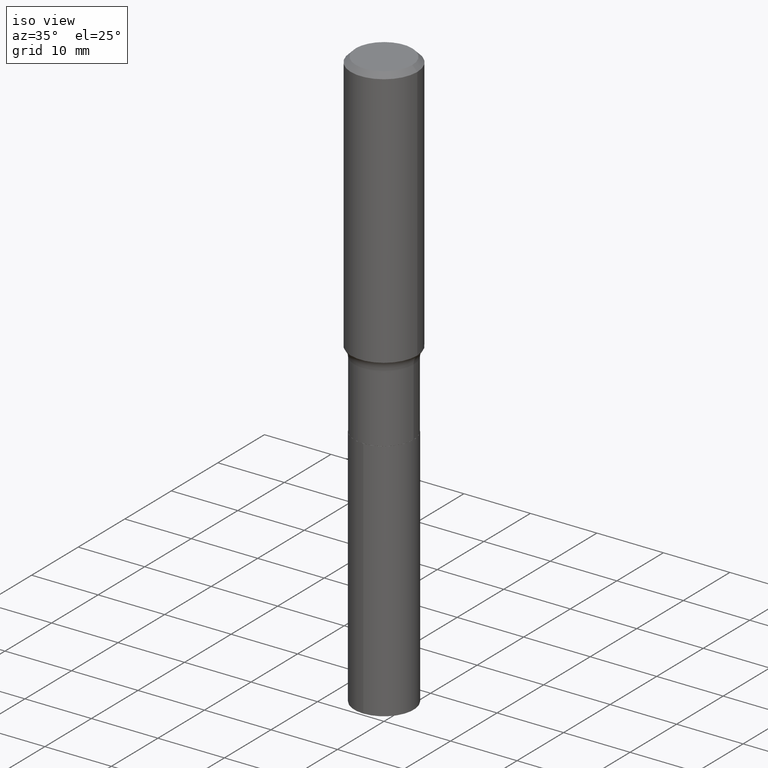
[diagram: clean part render]
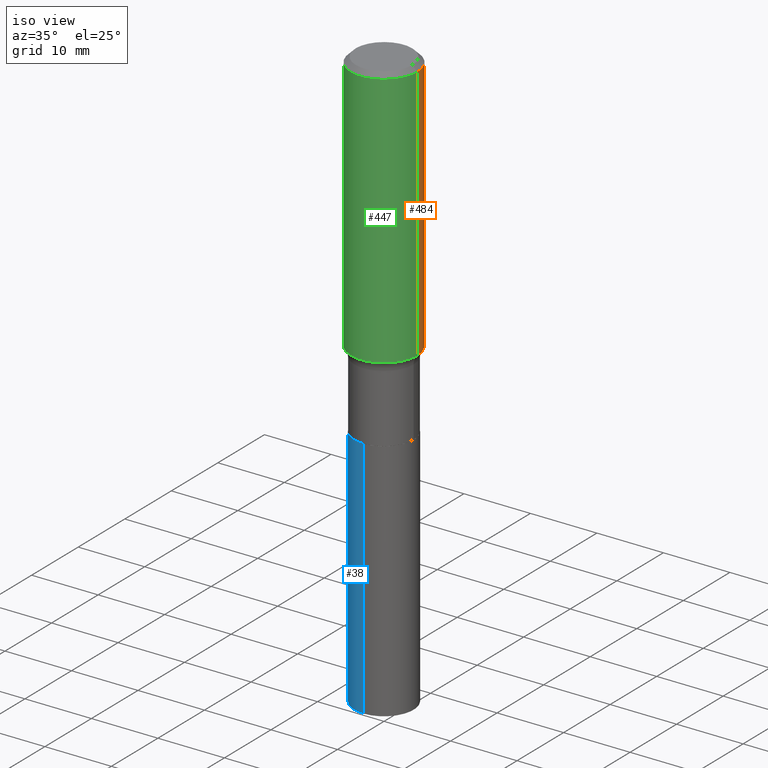
[diagram: same view with three faces highlighted in distinct colors, each labeled with its STEP entity id]
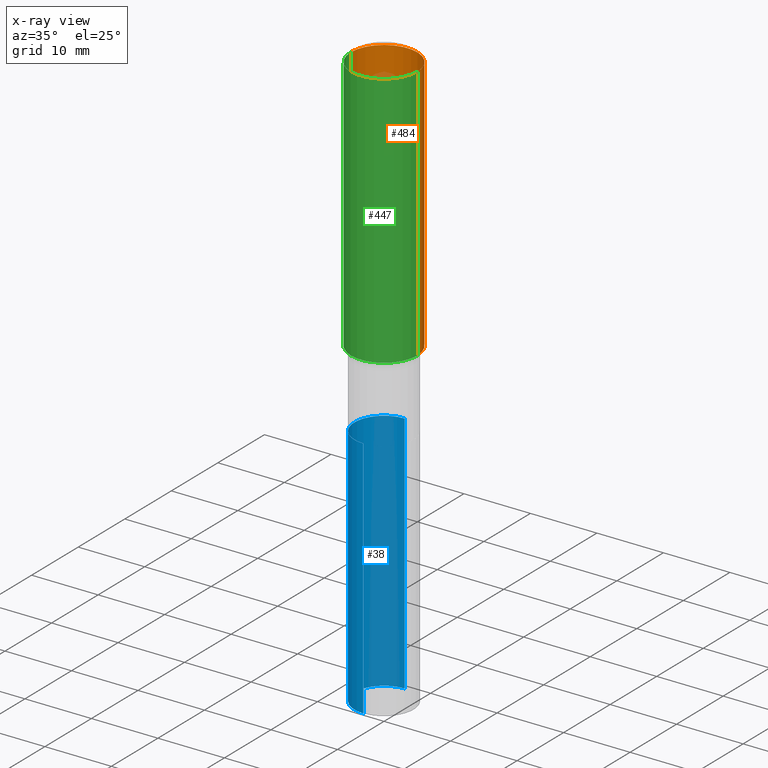
[diagram: x-ray of the same camera — body ghosted, the three highlighted faces saturated]
A machine part, iso view with three faces highlighted in distinct colors.
The next image is the same camera in x-ray (body ghosted, the three faces saturated) — at least one of them is partly hidden behind the body in this view.
Their STEP definitions:

[orange] entity #484 — the highlighted cylindrical surface (partial cylindrical patch) has radius 5 mm, axis along (-0, 0, 1).
#5 = ORIENTED_EDGE ( 'NONE', *, *, #328, .F. ) ;
#19 = EDGE_CURVE ( 'NONE', #114, #464, #381, .T. ) ;
#57 = CIRCLE ( 'NONE', #86, 0.1968500000000000527 ) ;
#86 = AXIS2_PLACEMENT_3D ( 'NONE', #445, #360, #480 ) ;
#93 = CARTESIAN_POINT ( 'NONE',  ( 0.1968500000000000527, -1.477690918335233688E-15, -0.02952750000000022024 ) ) ;
#106 = CYLINDRICAL_SURFACE ( 'NONE', #457, 0.1968500000000001082 ) ;
#108 = CARTESIAN_POINT ( 'NONE',  ( 0.000000000000000000, 0.000000000000000000, 0.000000000000000000 ) ) ;
#112 = VECTOR ( 'NONE', #450, 39.37007874015748143 ) ;
#114 = VERTEX_POINT ( 'NONE', #400 ) ;
#142 = CARTESIAN_POINT ( 'NONE',  ( -0.1968500000000000527, -1.353448661034646867E-15, -0.02952750000000022024 ) ) ;
#152 = DIRECTION ( 'NONE',  ( -2.445468806185136597E-29, 3.491481338843145583E-15, 1.000000000000000000 ) ) ;
#155 = EDGE_CURVE ( 'NONE', #464, #470, #162, .T. ) ;
#162 = LINE ( 'NONE', #280, #344 ) ;
#223 = AXIS2_PLACEMENT_3D ( 'NONE', #313, #152, #390 ) ;
#244 = DIRECTION ( 'NONE',  ( -2.445468806185136877E-29, 3.491481338843145188E-15, 1.000000000000000000 ) ) ;
#280 = CARTESIAN_POINT ( 'NONE',  ( -0.1968500000000001082, 1.398703375343757985E-15, -9.682923725166787881E-30 ) ) ;
#302 = DIRECTION ( 'NONE',  ( -2.445468806185136597E-29, 3.491481338843145583E-15, 1.000000000000000000 ) ) ;
#313 = CARTESIAN_POINT ( 'NONE',  ( 3.783061605558214403E-29, -5.401209357524118413E-15, -1.546967843543948229 ) ) ;
#328 = EDGE_CURVE ( 'NONE', #353, #470, #57, .T. ) ;
#344 = VECTOR ( 'NONE', #244, 39.37007874015748143 ) ;
#353 = VERTEX_POINT ( 'NONE', #93 ) ;
#355 = ORIENTED_EDGE ( 'NONE', *, *, #19, .T. ) ;
#360 = DIRECTION ( 'NONE',  ( -2.445468806185136597E-29, 3.491481338843145583E-15, 1.000000000000000000 ) ) ;
#381 = CIRCLE ( 'NONE', #223, 0.1968500000000001915 ) ;
#389 = ORIENTED_EDGE ( 'NONE', *, *, #155, .T. ) ;
#390 = DIRECTION ( 'NONE',  ( 1.000000000000000000, -6.982962677686266711E-15, 0.000000000000000000 ) ) ;
#398 = EDGE_LOOP ( 'NONE', ( #355, #389, #5, #399 ) ) ;
#399 = ORIENTED_EDGE ( 'NONE', *, *, #413, .F. ) ;
#400 = CARTESIAN_POINT ( 'NONE',  ( 0.1968500000000001915, -6.775805560626661599E-15, -1.546967843543948229 ) ) ;
#413 = EDGE_CURVE ( 'NONE', #114, #353, #417, .T. ) ;
#417 = LINE ( 'NONE', #419, #112 ) ;
#419 = CARTESIAN_POINT ( 'NONE',  ( 0.1968500000000001082, -1.374596203102542397E-15, 9.598753983154305062E-30 ) ) ;
#420 = CARTESIAN_POINT ( 'NONE',  ( -0.1968500000000001915, -4.002505982180359837E-15, -1.546967843543948229 ) ) ;
#445 = CARTESIAN_POINT ( 'NONE',  ( 7.220858017463216492E-31, -1.030947152326917595E-16, -0.02952750000000022024 ) ) ;
#450 = DIRECTION ( 'NONE',  ( -2.445468806185136877E-29, 3.491481338843145188E-15, 1.000000000000000000 ) ) ;
#452 = FACE_OUTER_BOUND ( 'NONE', #398, .T. ) ;
#455 = DIRECTION ( 'NONE',  ( 1.000000000000000000, -6.982962677686266711E-15, 4.876176775795935793E-29 ) ) ;
#457 = AXIS2_PLACEMENT_3D ( 'NONE', #108, #302, #455 ) ;
#464 = VERTEX_POINT ( 'NONE', #420 ) ;
#470 = VERTEX_POINT ( 'NONE', #142 ) ;
#480 = DIRECTION ( 'NONE',  ( 1.000000000000000000, -6.982962677686266711E-15, 0.000000000000000000 ) ) ;
#484 = ADVANCED_FACE ( 'NONE', ( #452 ), #106, .T. ) ;

[blue] entity #38 — the highlighted cylindrical surface (edge-blend (fillet) strip) has radius 4.4501 mm, axis along (-0, 0, 1).
#1 = LINE ( 'NONE', #259, #117 ) ;
#14 = CARTESIAN_POINT ( 'NONE',  ( -1.223415061130584771E-15, -0.1752000000000069890, -2.003899999999998904 ) ) ;
#38 = ADVANCED_FACE ( 'NONE', ( #194 ), #388, .T. ) ;
#70 = DIRECTION ( 'NONE',  ( -2.445393154295215171E-29, 3.491589676655351307E-15, 1.000000000000000000 ) ) ;
#78 = VECTOR ( 'NONE', #94, 39.37007874015748143 ) ;
#81 = ORIENTED_EDGE ( 'NONE', *, *, #227, .F. ) ;
#92 = EDGE_CURVE ( 'NONE', #319, #275, #209, .T. ) ;
#94 = DIRECTION ( 'NONE',  ( -2.445393154295215451E-29, 3.491589676655351307E-15, 1.000000000000000000 ) ) ;
#98 = DIRECTION ( 'NONE',  ( -2.445393154295215171E-29, 3.491589676655351307E-15, 1.000000000000000000 ) ) ;
#117 = VECTOR ( 'NONE', #258, 39.37007874015748143 ) ;
#173 = DIRECTION ( 'NONE',  ( -6.982962677686265133E-15, -1.000000000000000000, 3.118547937972903315E-15 ) ) ;
#188 = CIRCLE ( 'NONE', #394, 0.1751999999999999946 ) ;
#194 = FACE_OUTER_BOUND ( 'NONE', #233, .T. ) ;
#195 = ORIENTED_EDGE ( 'NONE', *, *, #378, .F. ) ;
#209 = LINE ( 'NONE', #359, #78 ) ;
#225 = DIRECTION ( 'NONE',  ( -6.982962677686265133E-15, -1.000000000000000000, 3.118547937972903315E-15 ) ) ;
#227 = EDGE_CURVE ( 'NONE', #430, #275, #188, .T. ) ;
#233 = EDGE_LOOP ( 'NONE', ( #195, #468, #311, #81 ) ) ;
#250 = CIRCLE ( 'NONE', #405, 0.1751999999999999946 ) ;
#256 = CARTESIAN_POINT ( 'NONE',  ( 8.433480303777848006E-29, -1.204108734173697850E-14, -3.448659652188401648 ) ) ;
#258 = DIRECTION ( 'NONE',  ( -2.445393154295215451E-29, 3.491589676655351307E-15, 1.000000000000000000 ) ) ;
#259 = CARTESIAN_POINT ( 'NONE',  ( 1.244870873051744200E-15, 0.1751999999999929725, -2.003900000000000237 ) ) ;
#271 = DIRECTION ( 'NONE',  ( -2.445393154295215171E-29, 3.491589676655351307E-15, 1.000000000000000000 ) ) ;
#275 = VERTEX_POINT ( 'NONE', #14 ) ;
#281 = CARTESIAN_POINT ( 'NONE',  ( -1.223415061130549272E-15, -0.1752000000000120683, -3.448659652188400759 ) ) ;
#311 = ORIENTED_EDGE ( 'NONE', *, *, #92, .T. ) ;
#319 = VERTEX_POINT ( 'NONE', #281 ) ;
#327 = AXIS2_PLACEMENT_3D ( 'NONE', #393, #271, #429 ) ;
#359 = CARTESIAN_POINT ( 'NONE',  ( -1.223415061130584771E-15, -0.1752000000000069890, -2.003899999999998904 ) ) ;
#378 = EDGE_CURVE ( 'NONE', #469, #430, #1, .T. ) ;
#383 = CARTESIAN_POINT ( 'NONE',  ( 1.244870873051779896E-15, 0.1751999999999929725, -2.003900000000000237 ) ) ;
#388 = CYLINDRICAL_SURFACE ( 'NONE', #327, 0.1751999999999999946 ) ;
#393 = CARTESIAN_POINT ( 'NONE',  ( 4.900474940714394579E-29, -6.996579454907778104E-15, -2.003899999999999793 ) ) ;
#394 = AXIS2_PLACEMENT_3D ( 'NONE', #407, #98, #173 ) ;
#397 = EDGE_CURVE ( 'NONE', #469, #319, #250, .T. ) ;
#405 = AXIS2_PLACEMENT_3D ( 'NONE', #256, #70, #225 ) ;
#407 = CARTESIAN_POINT ( 'NONE',  ( 4.900474940714394579E-29, -6.996579454907778104E-15, -2.003899999999999793 ) ) ;
#429 = DIRECTION ( 'NONE',  ( -6.982962677686265133E-15, -1.000000000000000000, 3.118547937972903315E-15 ) ) ;
#430 = VERTEX_POINT ( 'NONE', #383 ) ;
#453 = CARTESIAN_POINT ( 'NONE',  ( 1.244870873051780093E-15, 0.1751999999999879210, -3.448659652188402092 ) ) ;
#468 = ORIENTED_EDGE ( 'NONE', *, *, #397, .T. ) ;
#469 = VERTEX_POINT ( 'NONE', #453 ) ;

[green] entity #447 — the highlighted cylindrical surface (partial cylindrical patch) has radius 5 mm, axis along (-0, 0, 1).
#13 = CARTESIAN_POINT ( 'NONE',  ( 7.220858017463216492E-31, -1.030947152326917595E-16, -0.02952750000000022024 ) ) ;
#52 = DIRECTION ( 'NONE',  ( 1.000000000000000000, -6.982962677686266711E-15, 0.000000000000000000 ) ) ;
#71 = DIRECTION ( 'NONE',  ( -2.445468806185136597E-29, 3.491481338843145583E-15, 1.000000000000000000 ) ) ;
#93 = CARTESIAN_POINT ( 'NONE',  ( 0.1968500000000000527, -1.477690918335233688E-15, -0.02952750000000022024 ) ) ;
#111 = EDGE_CURVE ( 'NONE', #464, #114, #134, .T. ) ;
#112 = VECTOR ( 'NONE', #450, 39.37007874015748143 ) ;
#114 = VERTEX_POINT ( 'NONE', #400 ) ;
#122 = EDGE_CURVE ( 'NONE', #470, #353, #371, .T. ) ;
#129 = ORIENTED_EDGE ( 'NONE', *, *, #122, .F. ) ;
#134 = CIRCLE ( 'NONE', #171, 0.1968500000000001915 ) ;
#142 = CARTESIAN_POINT ( 'NONE',  ( -0.1968500000000000527, -1.353448661034646867E-15, -0.02952750000000022024 ) ) ;
#155 = EDGE_CURVE ( 'NONE', #464, #470, #162, .T. ) ;
#162 = LINE ( 'NONE', #280, #344 ) ;
#171 = AXIS2_PLACEMENT_3D ( 'NONE', #325, #247, #205 ) ;
#178 = FACE_OUTER_BOUND ( 'NONE', #267, .T. ) ;
#197 = AXIS2_PLACEMENT_3D ( 'NONE', #13, #471, #52 ) ;
#205 = DIRECTION ( 'NONE',  ( 1.000000000000000000, -6.982962677686266711E-15, 0.000000000000000000 ) ) ;
#244 = DIRECTION ( 'NONE',  ( -2.445468806185136877E-29, 3.491481338843145188E-15, 1.000000000000000000 ) ) ;
#247 = DIRECTION ( 'NONE',  ( -2.445468806185136597E-29, 3.491481338843145583E-15, 1.000000000000000000 ) ) ;
#261 = AXIS2_PLACEMENT_3D ( 'NONE', #303, #71, #262 ) ;
#262 = DIRECTION ( 'NONE',  ( 1.000000000000000000, -6.982962677686266711E-15, 4.876176775795935793E-29 ) ) ;
#267 = EDGE_LOOP ( 'NONE', ( #279, #276, #423, #129 ) ) ;
#276 = ORIENTED_EDGE ( 'NONE', *, *, #111, .T. ) ;
#279 = ORIENTED_EDGE ( 'NONE', *, *, #155, .F. ) ;
#280 = CARTESIAN_POINT ( 'NONE',  ( -0.1968500000000001082, 1.398703375343757985E-15, -9.682923725166787881E-30 ) ) ;
#296 = CYLINDRICAL_SURFACE ( 'NONE', #261, 0.1968500000000001082 ) ;
#303 = CARTESIAN_POINT ( 'NONE',  ( 0.000000000000000000, 0.000000000000000000, 0.000000000000000000 ) ) ;
#325 = CARTESIAN_POINT ( 'NONE',  ( 3.783061605558214403E-29, -5.401209357524118413E-15, -1.546967843543948229 ) ) ;
#344 = VECTOR ( 'NONE', #244, 39.37007874015748143 ) ;
#353 = VERTEX_POINT ( 'NONE', #93 ) ;
#371 = CIRCLE ( 'NONE', #197, 0.1968500000000000527 ) ;
#400 = CARTESIAN_POINT ( 'NONE',  ( 0.1968500000000001915, -6.775805560626661599E-15, -1.546967843543948229 ) ) ;
#413 = EDGE_CURVE ( 'NONE', #114, #353, #417, .T. ) ;
#417 = LINE ( 'NONE', #419, #112 ) ;
#419 = CARTESIAN_POINT ( 'NONE',  ( 0.1968500000000001082, -1.374596203102542397E-15, 9.598753983154305062E-30 ) ) ;
#420 = CARTESIAN_POINT ( 'NONE',  ( -0.1968500000000001915, -4.002505982180359837E-15, -1.546967843543948229 ) ) ;
#423 = ORIENTED_EDGE ( 'NONE', *, *, #413, .T. ) ;
#447 = ADVANCED_FACE ( 'NONE', ( #178 ), #296, .T. ) ;
#450 = DIRECTION ( 'NONE',  ( -2.445468806185136877E-29, 3.491481338843145188E-15, 1.000000000000000000 ) ) ;
#464 = VERTEX_POINT ( 'NONE', #420 ) ;
#470 = VERTEX_POINT ( 'NONE', #142 ) ;
#471 = DIRECTION ( 'NONE',  ( -2.445468806185136597E-29, 3.491481338843145583E-15, 1.000000000000000000 ) ) ;